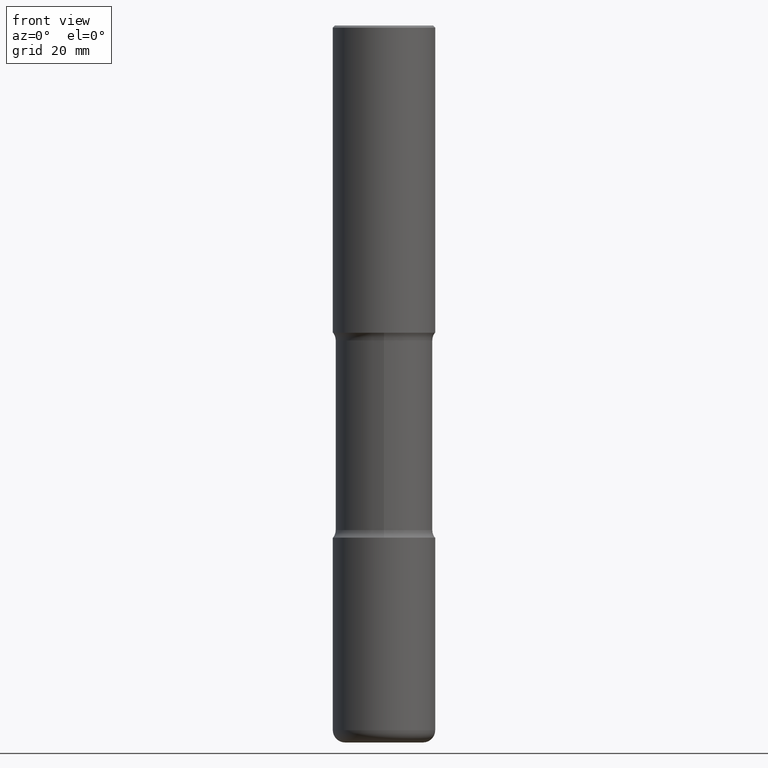
[diagram: clean part render]
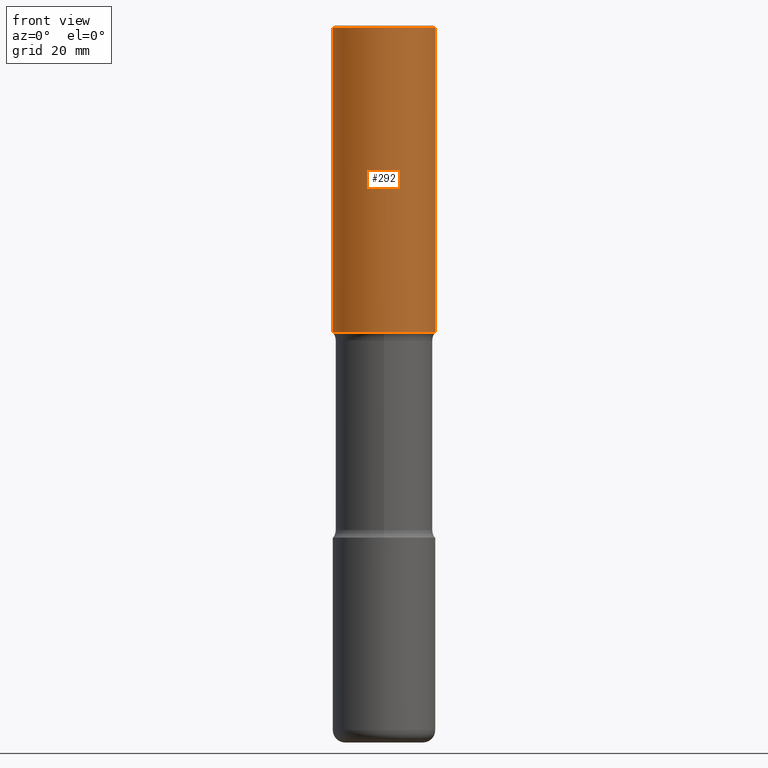
[diagram: same view with one face highlighted and labeled with its STEP entity id]
A machine part, front view. The second image highlights one B-rep face of the part: STEP entity #292.
In plain terms, the highlighted cylindrical surface (partial cylindrical patch) has radius 12.7 mm, axis along (-0, 0, 1).
Its self-contained STEP definition (entity closure, byte-faithful):
#31 = EDGE_CURVE ( 'NONE', #83, #136, #361, .T. ) ;
#38 = AXIS2_PLACEMENT_3D ( 'NONE', #435, #392, #72 ) ;
#59 = DIRECTION ( 'NONE',  ( -2.445468806185136877E-29, 3.491481338843145188E-15, 1.000000000000000000 ) ) ;
#72 = DIRECTION ( 'NONE',  ( 1.000000000000000000, -6.982962677686266711E-15, 0.000000000000000000 ) ) ;
#83 = VERTEX_POINT ( 'NONE', #210 ) ;
#88 = ORIENTED_EDGE ( 'NONE', *, *, #441, .T. ) ;
#91 = ORIENTED_EDGE ( 'NONE', *, *, #548, .T. ) ;
#101 = LINE ( 'NONE', #279, #499 ) ;
#136 = VERTEX_POINT ( 'NONE', #277 ) ;
#148 = DIRECTION ( 'NONE',  ( -2.445468806185136597E-29, 3.491481338843145583E-15, 1.000000000000000000 ) ) ;
#151 = DIRECTION ( 'NONE',  ( -2.445468806185136597E-29, 3.491481338843145583E-15, 1.000000000000000000 ) ) ;
#166 = ORIENTED_EDGE ( 'NONE', *, *, #479, .F. ) ;
#176 = VERTEX_POINT ( 'NONE', #274 ) ;
#189 = FACE_OUTER_BOUND ( 'NONE', #444, .T. ) ;
#198 = DIRECTION ( 'NONE',  ( 1.000000000000000000, -6.982962677686267499E-15, 4.876176775795935793E-29 ) ) ;
#210 = CARTESIAN_POINT ( 'NONE',  ( -0.4999999999999999445, 3.421651712066269663E-15, -0.02000000000000013572 ) ) ;
#220 = ORIENTED_EDGE ( 'NONE', *, *, #31, .F. ) ;
#245 = LINE ( 'NONE', #293, #559 ) ;
#274 = CARTESIAN_POINT ( 'NONE',  ( -0.5000000000000002220, -1.719423142852643572E-15, -2.999999999999999112 ) ) ;
#277 = CARTESIAN_POINT ( 'NONE',  ( 0.4999999999999999445, -3.500078625662628685E-15, -0.02000000000000013572 ) ) ;
#279 = CARTESIAN_POINT ( 'NONE',  ( 0.5000000000000001110, -3.491481338843134539E-15, 2.438088387897968457E-29 ) ) ;
#292 = ADVANCED_FACE ( 'NONE', ( #189 ), #366, .T. ) ;
#293 = CARTESIAN_POINT ( 'NONE',  ( -0.5000000000000001110, 3.552713678800501718E-15, -2.459467545127453732E-29 ) ) ;
#331 = CARTESIAN_POINT ( 'NONE',  ( 0.5000000000000002220, -1.396592535537256813E-14, -2.999999999999999112 ) ) ;
#361 = CIRCLE ( 'NONE', #38, 0.4999999999999999445 ) ;
#366 = CYLINDRICAL_SURFACE ( 'NONE', #474, 0.5000000000000001110 ) ;
#391 = VERTEX_POINT ( 'NONE', #331 ) ;
#392 = DIRECTION ( 'NONE',  ( -2.445468806185136597E-29, 3.491481338843145583E-15, 1.000000000000000000 ) ) ;
#394 = DIRECTION ( 'NONE',  ( -2.445468806185136877E-29, 3.491481338843145188E-15, 1.000000000000000000 ) ) ;
#435 = CARTESIAN_POINT ( 'NONE',  ( 4.890937612370306439E-31, -6.982962677686338448E-17, -0.02000000000000013572 ) ) ;
#441 = EDGE_CURVE ( 'NONE', #391, #136, #101, .T. ) ;
#444 = EDGE_LOOP ( 'NONE', ( #166, #91, #88, #220 ) ) ;
#468 = CIRCLE ( 'NONE', #508, 0.5000000000000002220 ) ;
#470 = DIRECTION ( 'NONE',  ( 1.000000000000000000, -6.982962677686267499E-15, 0.000000000000000000 ) ) ;
#474 = AXIS2_PLACEMENT_3D ( 'NONE', #543, #151, #198 ) ;
#479 = EDGE_CURVE ( 'NONE', #176, #83, #245, .T. ) ;
#499 = VECTOR ( 'NONE', #59, 39.37007874015748143 ) ;
#508 = AXIS2_PLACEMENT_3D ( 'NONE', #511, #148, #470 ) ;
#511 = CARTESIAN_POINT ( 'NONE',  ( 7.336406418555407548E-29, -1.047444401652943320E-14, -2.999999999999999112 ) ) ;
#543 = CARTESIAN_POINT ( 'NONE',  ( 0.000000000000000000, 0.000000000000000000, 0.000000000000000000 ) ) ;
#548 = EDGE_CURVE ( 'NONE', #176, #391, #468, .T. ) ;
#559 = VECTOR ( 'NONE', #394, 39.37007874015748143 ) ;